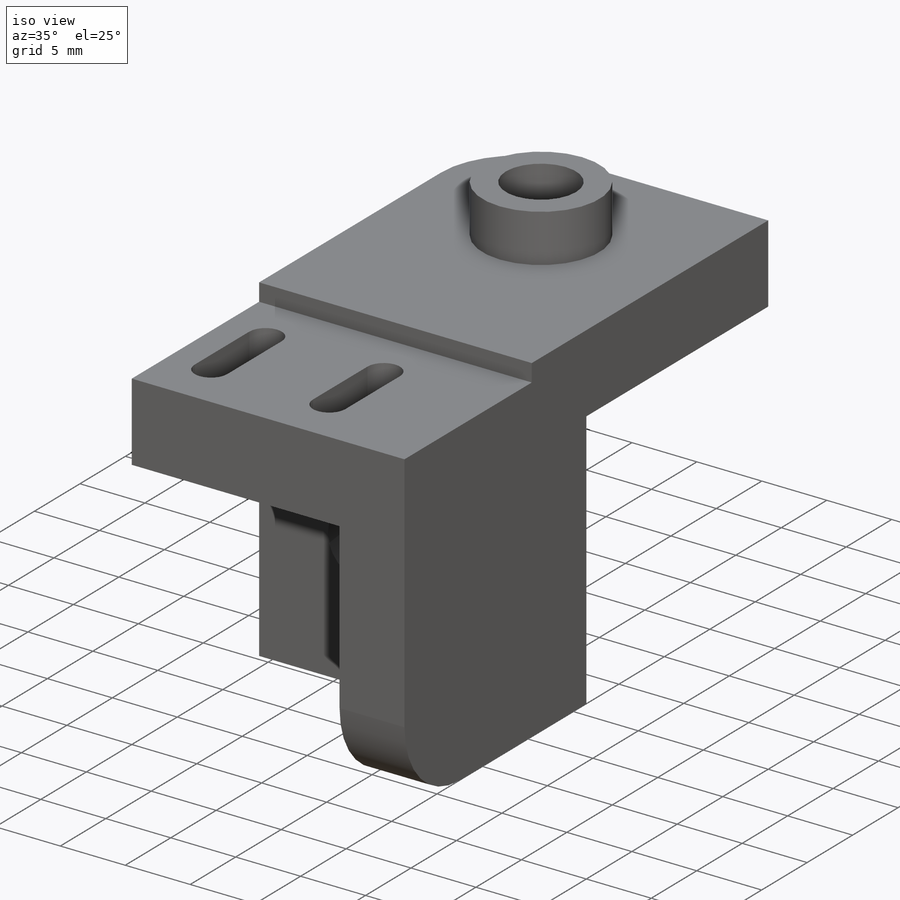
[diagram: iso view]
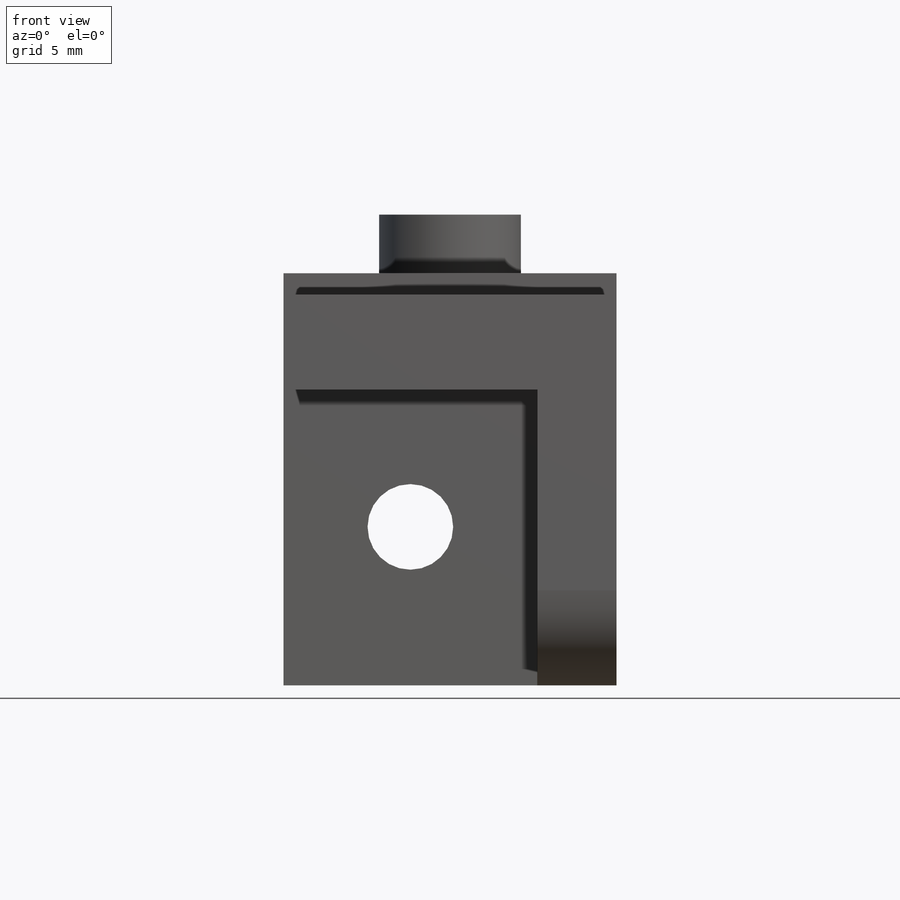
[diagram: front view]
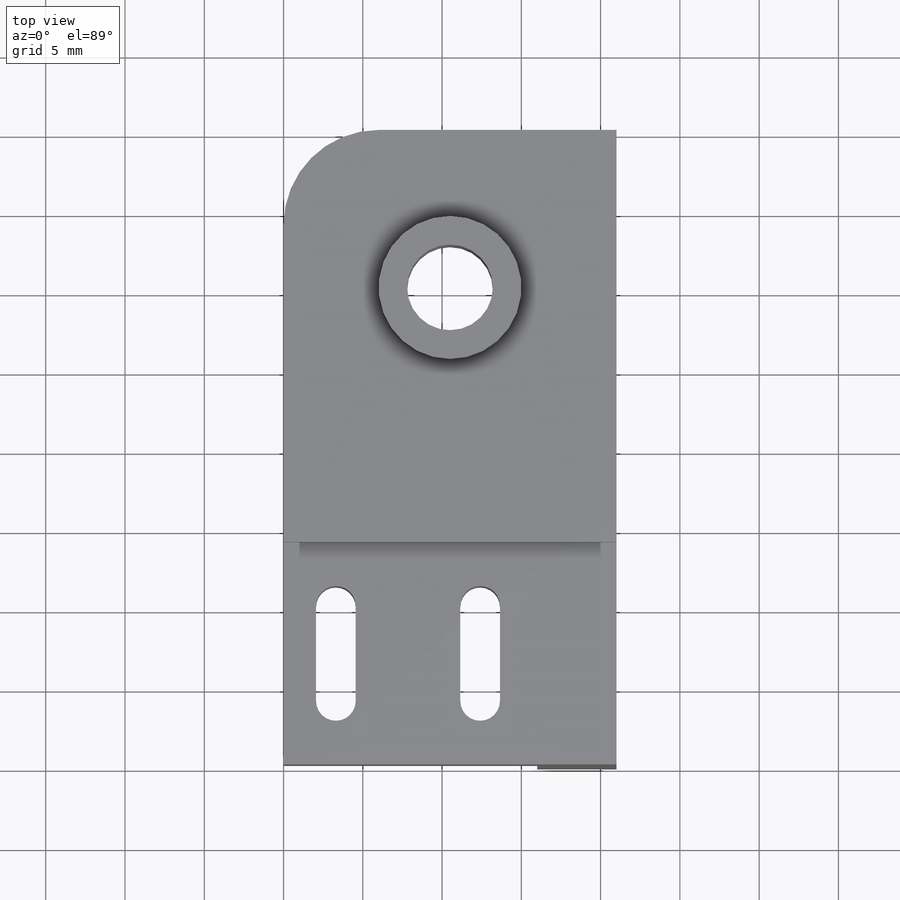
[diagram: top view]
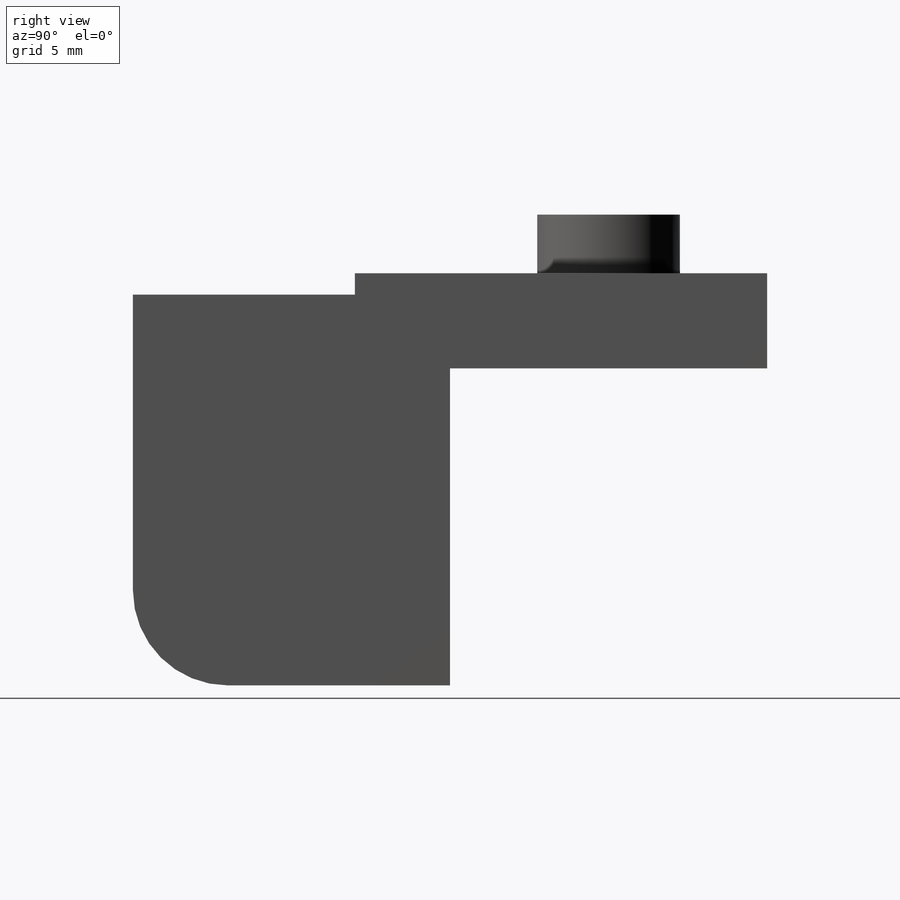
[diagram: right view]
SOLIDWORKS PART (.sldprt)
format: sldprt  version: not decoded by parser v0  size: 261,120 bytes
history: native  units: mm
features: sketch x7, extrude x5, plane x3, cut_extrude x2, fillet x2, material x1 (+9 scaffold rows collapsed)
feature tree (29):
  scaffold x9  (default folders/planes/origin — collapsed)
  material  "Materiał <nieokreślony>"
  plane  "Płaszczyzna przednia"
  plane  "Płaszczyzna górna"
  plane  "Płaszczyzna prawa"
  sketch  "Szkic1"  dims[D3=5.4mm D1=20.0mm D2=21.0mm D4=10.0mm D5=13.0mm D6=6.0mm]
  extrude  "Dodanie-wyciągnięcie1"  Depth=6mm
  sketch  "Szkic2"  dims[D1=6.0mm]
  extrude  "Dodanie-wyciągnięcie2"  Depth=20mm
  sketch  "Szkic3"  dims[D3=5.4mm D1=10.5mm D2=10.0mm D4=15.0mm]
  cut_extrude  "Wytnij-wyciągnięcie1"  Depth=9mm
  sketch  "Szkic4"  dims[D1=24.65mm D2=6.0mm]
  extrude  "Dodanie-wyciągnięcie3"  Depth=14mm
  sketch  "Szkic5"  dims[c1.D2=~1.041283mm c1.D4=1.25mm c1.D1=6.0mm c2.D2=2.05mm c2.D3=2.5mm c2.D4=4.0mm c2.D5=3.3mm c3.D4=4.0mm]
  cut_extrude  "Wytnij-wyciągnięcie2"  Depth=40.05mm
  sketch  "Szkic6"  dims[D1=5.4mm D2=9.0mm]
  extrude  "Dodanie-wyciągnięcie5"  Depth=3.7mm
  fillet  "Zaokrąglenie2"  Radius=6mm
  sketch  "Szkic7"  dims[D1=5.0mm]
  extrude  "Dodanie-wyciągnięcie6"  Depth=14mm
  fillet  "Zaokrąglenie3"  Radius=6mm
decode coverage: 16 of 16 modeling features carry decoded parameters
note: ~ marks probable driven/reference dimensions
note: suppression state not decoded; provenance and decode notes live in map.json
